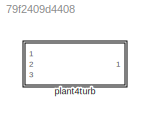
MODEL slx_79f2409d4408
KIND library
CONFIG AbsTol = auto
CONFIG EnableMultiTasking = off
CONFIG FixedStep = auto
CONFIG MaxStep = auto
CONFIG MinStep = auto
CONFIG RelTol = 1e-3
CONFIG SampleTimeConstraint = Unconstrained
CONFIG SolverName = VariableStepAuto
CONFIG StartTime = 0.0
CONFIG StopTime = 10.0
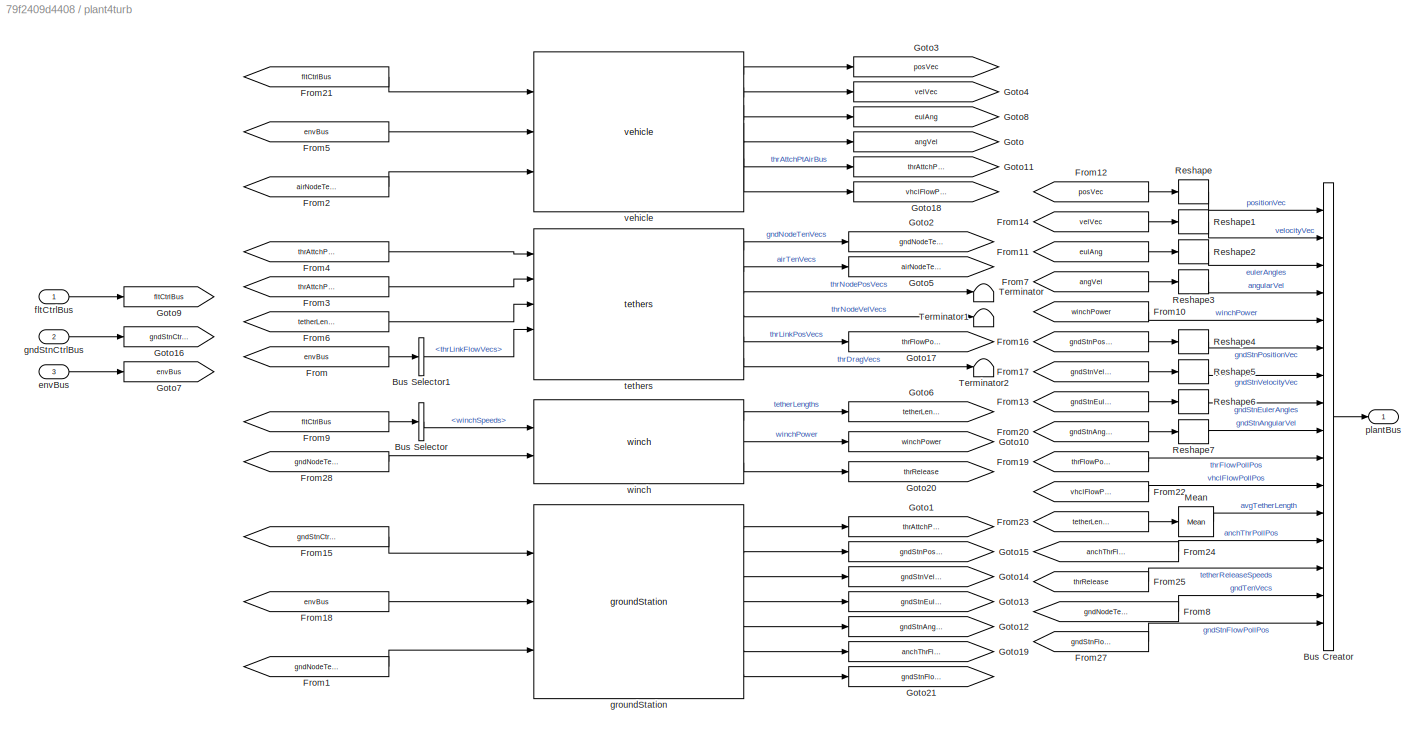
BLOCK [SubSystem] plant4turb
  InitFcn = initializeBussesFromBlock(gcb)
  LoadFcn = initializeBussesFromBlock(gcb)
  Ports = [3, 1]
  RequestExecContextInheritance = off
  StartFcn = initializeBussesFromBlock(gcb)
  VariantControl = VSS_plant_modularPlant
BLOCK [BusCreator] plant4turb/Bus Creator
  DisplayOption = bar
  InheritFromInputs = on
  Inputs = 16
  NonVirtualBus = on
  OutDataTypeStr = Bus: plantBus
  Ports = [16, 1]
BLOCK [BusSelector] plant4turb/Bus Selector
  OutputSignals = winchSpeeds
  Ports = [1, 1]
BLOCK [BusSelector] plant4turb/Bus Selector1
  OutputSignals = thrLinkFlowVecs
  Ports = [1, 1]
BLOCK [From] plant4turb/From
  GotoTag = envBus
BLOCK [From] plant4turb/From1
  GotoTag = gndNodeTenVecs
BLOCK [From] plant4turb/From10
  GotoTag = winchPower
BLOCK [From] plant4turb/From11
  GotoTag = eulAng
BLOCK [From] plant4turb/From12
  GotoTag = posVec
BLOCK [From] plant4turb/From13
  GotoTag = gndStnEulAng
BLOCK [From] plant4turb/From14
  GotoTag = velVec
BLOCK [From] plant4turb/From15
  GotoTag = gndStnCtrlBus
BLOCK [From] plant4turb/From16
  GotoTag = gndStnPosVec
BLOCK [From] plant4turb/From17
  GotoTag = gndStnVelVec
BLOCK [From] plant4turb/From18
  GotoTag = envBus
BLOCK [From] plant4turb/From19
  GotoTag = thrFlowPollPos
BLOCK [From] plant4turb/From2
  GotoTag = airNodeTenVecs
BLOCK [From] plant4turb/From20
  GotoTag = gndStnAngVel
BLOCK [From] plant4turb/From21
  GotoTag = fltCtrlBus
BLOCK [From] plant4turb/From22
  GotoTag = vhclFlowPollPos
BLOCK [From] plant4turb/From23
  GotoTag = tetherLengths
BLOCK [From] plant4turb/From24
  GotoTag = anchThrFlowPollPositions
BLOCK [From] plant4turb/From25
  GotoTag = thrRelease
BLOCK [From] plant4turb/From27
  GotoTag = gndStnFlowPollPos
BLOCK [From] plant4turb/From28
  GotoTag = gndNodeTenVecs
BLOCK [From] plant4turb/From3
  GotoTag = thrAttchPtAirBus
BLOCK [From] plant4turb/From4
  GotoTag = thrAttchPtGndBus
BLOCK [From] plant4turb/From5
  GotoTag = envBus
BLOCK [From] plant4turb/From6
  GotoTag = tetherLengths
BLOCK [From] plant4turb/From7
  GotoTag = angVel
BLOCK [From] plant4turb/From8
  GotoTag = gndNodeTenVecs
BLOCK [From] plant4turb/From9
  GotoTag = fltCtrlBus
BLOCK [Goto] plant4turb/Goto
  GotoTag = angVel
BLOCK [Goto] plant4turb/Goto1
  GotoTag = thrAttchPtGndBus
BLOCK [Goto] plant4turb/Goto10
  GotoTag = winchPower
BLOCK [Goto] plant4turb/Goto11
  GotoTag = thrAttchPtAirBus
BLOCK [Goto] plant4turb/Goto12
  GotoTag = gndStnAngVel
BLOCK [Goto] plant4turb/Goto13
  GotoTag = gndStnEulAng
BLOCK [Goto] plant4turb/Goto14
  GotoTag = gndStnVelVec
BLOCK [Goto] plant4turb/Goto15
  GotoTag = gndStnPosVec
BLOCK [Goto] plant4turb/Goto16
  GotoTag = gndStnCtrlBus
BLOCK [Goto] plant4turb/Goto17
  GotoTag = thrFlowPollPos
BLOCK [Goto] plant4turb/Goto18
  GotoTag = vhclFlowPollPos
BLOCK [Goto] plant4turb/Goto19
  GotoTag = anchThrFlowPollPositions
BLOCK [Goto] plant4turb/Goto2
  GotoTag = gndNodeTenVecs
BLOCK [Goto] plant4turb/Goto20
  GotoTag = thrRelease
BLOCK [Goto] plant4turb/Goto21
  GotoTag = gndStnFlowPollPos
BLOCK [Goto] plant4turb/Goto3
  GotoTag = posVec
BLOCK [Goto] plant4turb/Goto4
  GotoTag = velVec
BLOCK [Goto] plant4turb/Goto5
  GotoTag = airNodeTenVecs
BLOCK [Goto] plant4turb/Goto6
  GotoTag = tetherLengths
BLOCK [Goto] plant4turb/Goto7
  GotoTag = envBus
BLOCK [Goto] plant4turb/Goto8
  GotoTag = eulAng
BLOCK [Goto] plant4turb/Goto9
  GotoTag = fltCtrlBus
BLOCK [Reference] plant4turb/Mean  REF=dspstat3/Mean
  Ports = [1, 1]
  SourceBlock = dspstat3/Mean
  SourceProductBaseCode = DS
  SourceType = Mean
  UserDataPersistent = on
BLOCK [Reshape] plant4turb/Reshape
  OutputDimensionality = Column vector (2-D)
  Ports = [1, 1]
BLOCK [Reshape] plant4turb/Reshape1
  OutputDimensionality = Column vector (2-D)
  Ports = [1, 1]
BLOCK [Reshape] plant4turb/Reshape2
  OutputDimensionality = Column vector (2-D)
  Ports = [1, 1]
BLOCK [Reshape] plant4turb/Reshape3
  OutputDimensionality = Column vector (2-D)
  Ports = [1, 1]
BLOCK [Reshape] plant4turb/Reshape4
  OutputDimensionality = Column vector (2-D)
  Ports = [1, 1]
BLOCK [Reshape] plant4turb/Reshape5
  OutputDimensionality = Column vector (2-D)
  Ports = [1, 1]
BLOCK [Reshape] plant4turb/Reshape6
  OutputDimensionality = Column vector (2-D)
  Ports = [1, 1]
BLOCK [Reshape] plant4turb/Reshape7
  OutputDimensionality = Column vector (2-D)
  Ports = [1, 1]
BLOCK [Terminator] plant4turb/Terminator
BLOCK [Terminator] plant4turb/Terminator1
BLOCK [Terminator] plant4turb/Terminator2
BLOCK [Inport] plant4turb/envBus
  OutDataTypeStr = Bus: envBus
  Port = 3
BLOCK [Inport] plant4turb/fltCtrlBus
  OutDataTypeStr = Bus: fltCtrlBus
BLOCK [Inport] plant4turb/gndStnCtrlBus
  OutDataTypeStr = Bus: gndStnCtrlBus
  Port = 2
BLOCK [Reference] plant4turb/groundStation  REF=groundStation_cl/groundStation
  Ports = [3, 7]
  SourceBlock = groundStation_cl/groundStation
BLOCK [Outport] plant4turb/plantBus
  OutDataTypeStr = Bus: plantBus
  VectorParamsAs1DForOutWhenUnconnected = off
BLOCK [Reference] plant4turb/tethers  REF=tethers_cl/tethers
  Ports = [5, 6]
  SourceBlock = tethers_cl/tethers
BLOCK [Reference] plant4turb/vehicle  REF=vehicle_cl/vehicle  (lib defined in slx_18c89c889f27)
  Ports = [3, 8]
  SourceBlock = vehicle_cl/vehicle
BLOCK [Reference] plant4turb/winch  REF=winch_cl/winch
  Ports = [2, 3]
  SourceBlock = winch_cl/winch
LINE plant4turb/Bus Creator:1 -> plant4turb/plantBus:1
LINE plant4turb/Bus Selector1:1 -> plant4turb/tethers:4
LINE plant4turb/Bus Selector:1 -> plant4turb/winch:1
LINE plant4turb/From10:1 -> plant4turb/Bus Creator:5
LINE plant4turb/From11:1 -> plant4turb/Reshape2:1
LINE plant4turb/From12:1 -> plant4turb/Reshape:1
LINE plant4turb/From13:1 -> plant4turb/Reshape6:1
LINE plant4turb/From14:1 -> plant4turb/Reshape1:1
LINE plant4turb/From15:1 -> plant4turb/groundStation:1
LINE plant4turb/From16:1 -> plant4turb/Reshape4:1
LINE plant4turb/From17:1 -> plant4turb/Reshape5:1
LINE plant4turb/From18:1 -> plant4turb/groundStation:2
LINE plant4turb/From19:1 -> plant4turb/Bus Creator:10
LINE plant4turb/From1:1 -> plant4turb/groundStation:3
LINE plant4turb/From20:1 -> plant4turb/Reshape7:1
LINE plant4turb/From21:1 -> plant4turb/vehicle:1
LINE plant4turb/From22:1 -> plant4turb/Bus Creator:11
LINE plant4turb/From23:1 -> plant4turb/Mean:1
LINE plant4turb/From24:1 -> plant4turb/Bus Creator:13
LINE plant4turb/From25:1 -> plant4turb/Bus Creator:14
LINE plant4turb/From27:1 -> plant4turb/Bus Creator:16
LINE plant4turb/From28:1 -> plant4turb/winch:2
LINE plant4turb/From2:1 -> plant4turb/vehicle:3
LINE plant4turb/From3:1 -> plant4turb/tethers:2
LINE plant4turb/From4:1 -> plant4turb/tethers:1
LINE plant4turb/From5:1 -> plant4turb/vehicle:2
LINE plant4turb/From6:1 -> plant4turb/tethers:3
LINE plant4turb/From7:1 -> plant4turb/Reshape3:1
LINE plant4turb/From8:1 -> plant4turb/Bus Creator:15
LINE plant4turb/From9:1 -> plant4turb/Bus Selector:1
LINE plant4turb/From:1 -> plant4turb/Bus Selector1:1
LINE plant4turb/Mean:1 -> plant4turb/Bus Creator:12
LINE plant4turb/Reshape1:1 -> plant4turb/Bus Creator:2
LINE plant4turb/Reshape2:1 -> plant4turb/Bus Creator:3
LINE plant4turb/Reshape3:1 -> plant4turb/Bus Creator:4
LINE plant4turb/Reshape4:1 -> plant4turb/Bus Creator:6
LINE plant4turb/Reshape5:1 -> plant4turb/Bus Creator:7
LINE plant4turb/Reshape6:1 -> plant4turb/Bus Creator:8
LINE plant4turb/Reshape7:1 -> plant4turb/Bus Creator:9
LINE plant4turb/Reshape:1 -> plant4turb/Bus Creator:1
LINE plant4turb/envBus:1 -> plant4turb/Goto7:1
LINE plant4turb/fltCtrlBus:1 -> plant4turb/Goto9:1
LINE plant4turb/gndStnCtrlBus:1 -> plant4turb/Goto16:1
LINE plant4turb/groundStation:1 -> plant4turb/Goto1:1
LINE plant4turb/groundStation:2 -> plant4turb/Goto15:1
LINE plant4turb/groundStation:3 -> plant4turb/Goto14:1
LINE plant4turb/groundStation:4 -> plant4turb/Goto13:1
LINE plant4turb/groundStation:5 -> plant4turb/Goto12:1
LINE plant4turb/groundStation:6 -> plant4turb/Goto19:1
LINE plant4turb/groundStation:7 -> plant4turb/Goto21:1
LINE plant4turb/tethers:1 -> plant4turb/Goto2:1
LINE plant4turb/tethers:2 -> plant4turb/Goto5:1
LINE plant4turb/tethers:3 -> plant4turb/Terminator:1
LINE plant4turb/tethers:4 -> plant4turb/Terminator1:1
LINE plant4turb/tethers:5 -> plant4turb/Goto17:1
LINE plant4turb/tethers:6 -> plant4turb/Terminator2:1
LINE plant4turb/vehicle:1 -> plant4turb/Goto3:1
LINE plant4turb/vehicle:2 -> plant4turb/Goto4:1
LINE plant4turb/vehicle:3 -> plant4turb/Goto8:1
LINE plant4turb/vehicle:4 -> plant4turb/Goto:1
LINE plant4turb/vehicle:5 -> plant4turb/Goto11:1
LINE plant4turb/vehicle:6 -> plant4turb/Goto18:1
LINE plant4turb/winch:1 -> plant4turb/Goto6:1
LINE plant4turb/winch:2 -> plant4turb/Goto10:1
LINE plant4turb/winch:3 -> plant4turb/Goto20:1
